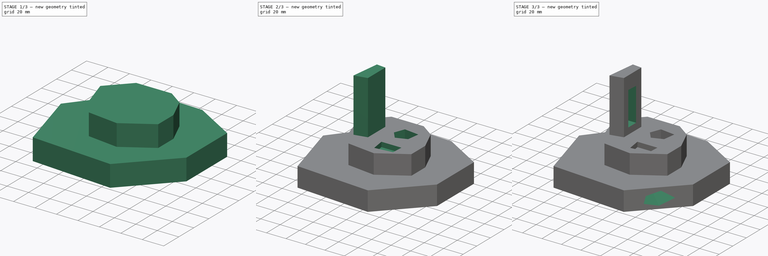
[diagram: build sequence overview — one tinted view per stage of 3, left to right]
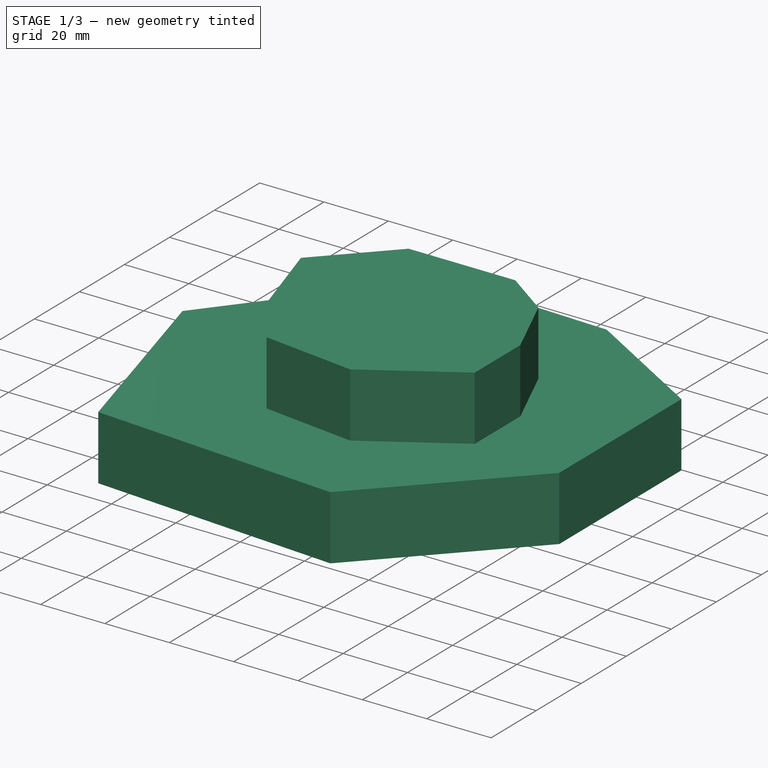
[diagram: stage 1 of 3 — iso view after this stage's code; geometry added in this stage tinted green]
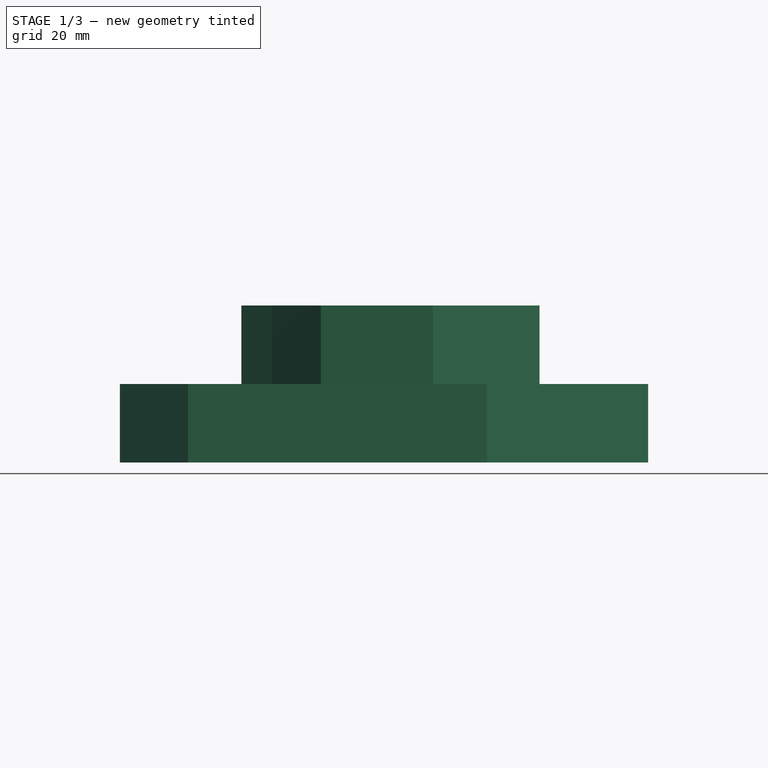
[diagram: stage 1 of 3 — front view after this stage's code; geometry added in this stage tinted green]
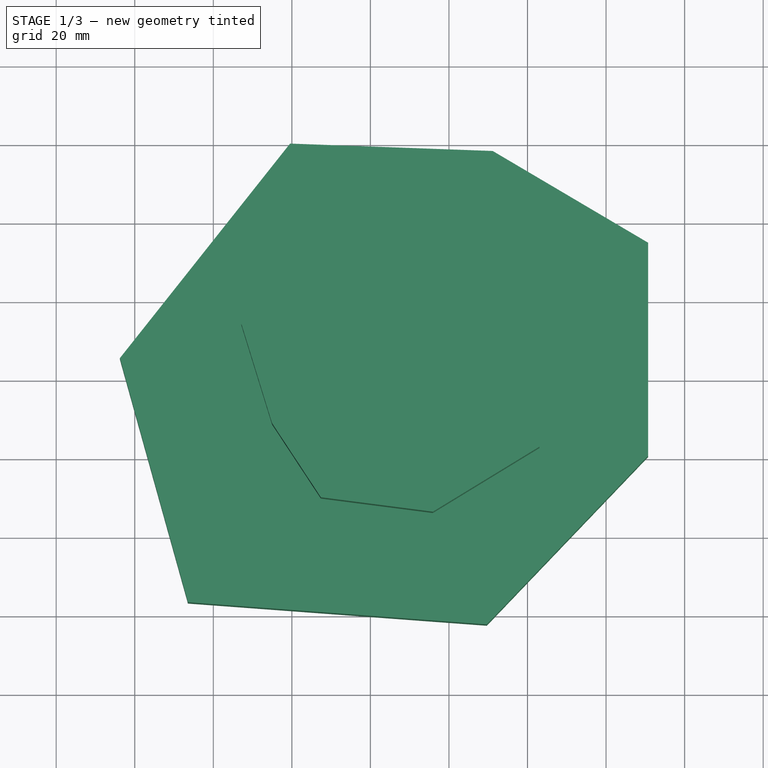
[diagram: stage 1 of 3 — top view after this stage's code; geometry added in this stage tinted green]
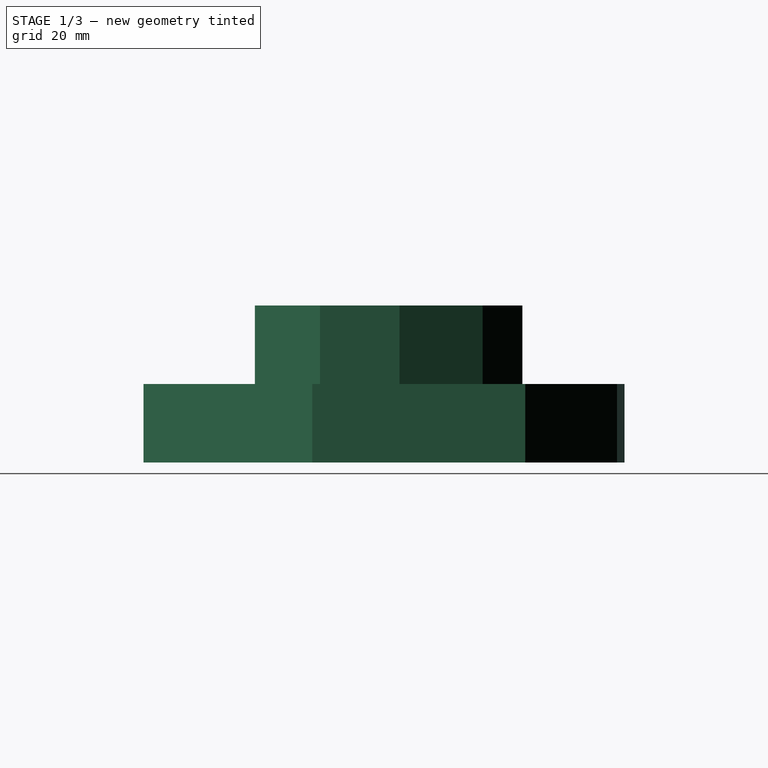
[diagram: stage 1 of 3 — right view after this stage's code; geometry added in this stage tinted green]
FCSTD DOCUMENT  (FreeCAD 0.21R33694 (Git))
Label: OJT1_T17P01_
License: All rights reserved
LicenseURL: http://en.wikipedia.org/wiki/All_rights_reserved
objects: Sketcher::SketchObject×7, PartDesign::Pocket×4, PartDesign::Pad×3, PartDesign::Body×1
note: 22 computed .brp shape members not serialized (recipe doc carries the construction recipe); baked Part::Feature solids carry a one-line shape summary decoded from their .brp

FEATURE [Sketcher::SketchObject] Sketch
  FullyConstrained = false
  MapMode = 5
  Support = -> [XY_Plane]
  sketch-geometry (7):
    g0: LineSegment StartX=-20.4595 StartY=40.1171 StartZ=0 EndX=31.1516 EndY=38.2335 EndZ=0
    g1: LineSegment StartX=31.1516 StartY=38.2335 StartZ=0 EndX=70.7076 EndY=14.8767 EndZ=0
    g2: LineSegment StartX=70.7076 StartY=14.8767 StartZ=0 EndX=70.7076 EndY=-39.3715 EndZ=0
    g3: LineSegment StartX=70.7076 StartY=-39.3715 StartZ=0 EndX=29.6447 EndY=-82.318 EndZ=0
    g4: LineSegment StartX=29.6447 StartY=-82.318 StartZ=0 EndX=-46.4534 EndY=-76.6671 EndZ=0
    g5: LineSegment StartX=-46.4534 StartY=-76.6671 StartZ=0 EndX=-63.7827 EndY=-14.5078 EndZ=0
    g6: LineSegment StartX=-63.7827 StartY=-14.5078 StartZ=0 EndX=-20.4595 EndY=40.1171 EndZ=0
  constraints (8):
    c: Coincident(g0,g1)
    c: Coincident(g1,g2)
    c: Vertical(g2)
    c: Coincident(g2,g3)
    c: Coincident(g3,g4)
    c: Coincident(g4,g5)
    c: Coincident(g5,g6)
    c: Coincident(g6,g0)
FEATURE [PartDesign::Pad] Pad
  Direction = (0,0,1)
  Length = 20
  Length2 = 10
  Profile = -> Sketch
  ReferenceAxis = -> Sketch [N_Axis]
  Type = 0
FEATURE [Sketcher::SketchObject] Sketch001
  FullyConstrained = false
  MapMode = 5
  Placement = pos=(0,0,20) rot=(0,0,1;0rad)
  Support = -> [Pad]
  sketch-geometry (9):
    g0: LineSegment StartX=-13.538 StartY=14.1371 StartZ=0 EndX=19.5914 EndY=14.1371 EndZ=0
    g1: LineSegment StartX=19.5914 StartY=14.1371 StartZ=0 EndX=33.8555 EndY=4.01425 EndZ=0
    g2: LineSegment StartX=33.8555 StartY=4.01425 StartZ=0 EndX=43.0581 EndY=-17.1518 EndZ=0
    g3: LineSegment StartX=43.0581 StartY=-17.1518 StartZ=0 EndX=43.0581 EndY=-37.3975 EndZ=0
    g4: LineSegment StartX=43.0581 StartY=-37.3975 StartZ=0 EndX=15.9104 EndY=-53.9622 EndZ=0
    g5: LineSegment StartX=15.9104 StartY=-53.9622 StartZ=0 EndX=-12.6177 EndY=-50.2812 EndZ=0
    g6: LineSegment StartX=-12.6177 StartY=-50.2812 StartZ=0 EndX=-25.0413 EndY=-31.4158 EndZ=0
    g7: LineSegment StartX=-25.0413 StartY=-31.4158 StartZ=0 EndX=-32.8635 EndY=-6.10863 EndZ=0
    g8: LineSegment StartX=-32.8635 StartY=-6.10863 StartZ=0 EndX=-13.538 EndY=14.1371 EndZ=0
  constraints (11):
    c: Horizontal(g0)
    c: Coincident(g0,g1)
    c: Coincident(g1,g2)
    c: Coincident(g2,g3)
    c: Vertical(g3)
    c: Coincident(g3,g4)
    c: Coincident(g4,g5)
    c: Coincident(g5,g6)
    c: Coincident(g6,g7)
    c: Coincident(g7,g8)
    c: Coincident(g8,g0)
FEATURE [PartDesign::Pad] Pad001
  BaseFeature = -> Pad
  Direction = (0,0,1)
  Length = 20
  Length2 = 10
  Profile = -> Sketch001
  ReferenceAxis = -> Sketch001 [N_Axis]
  Type = 0
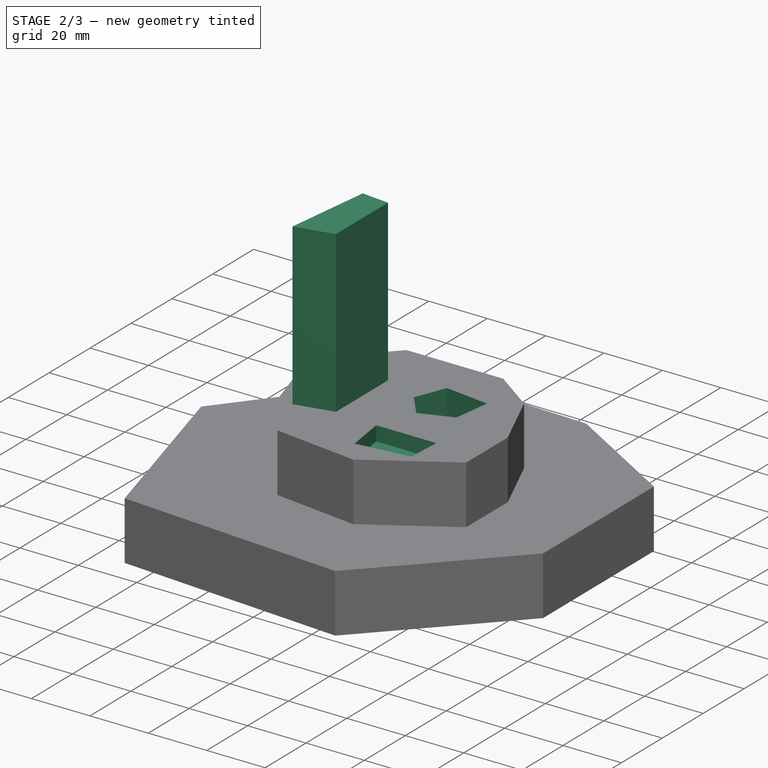
[diagram: stage 2 of 3 — iso view after this stage's code; geometry added in this stage tinted green]
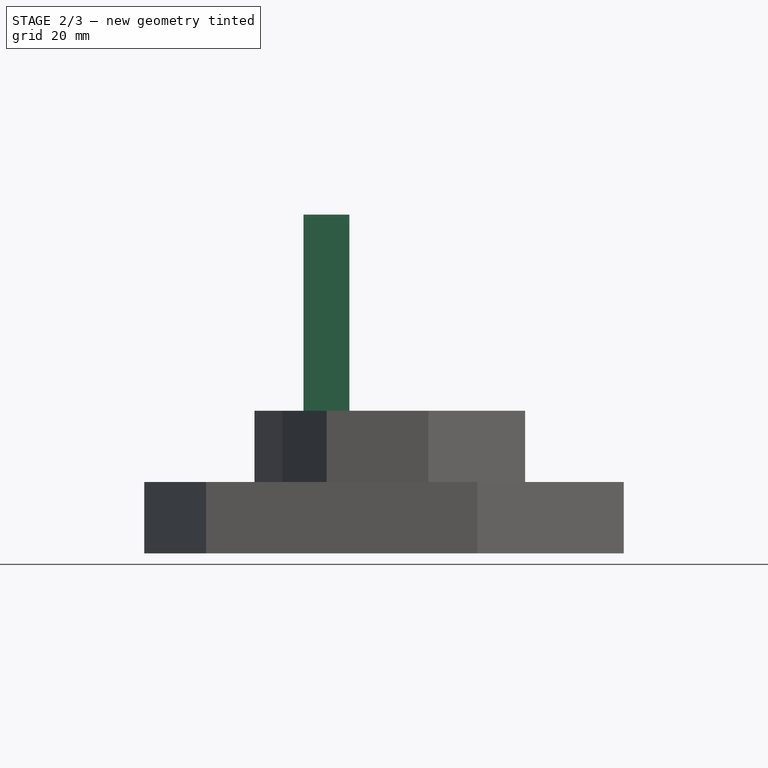
[diagram: stage 2 of 3 — front view after this stage's code; geometry added in this stage tinted green]
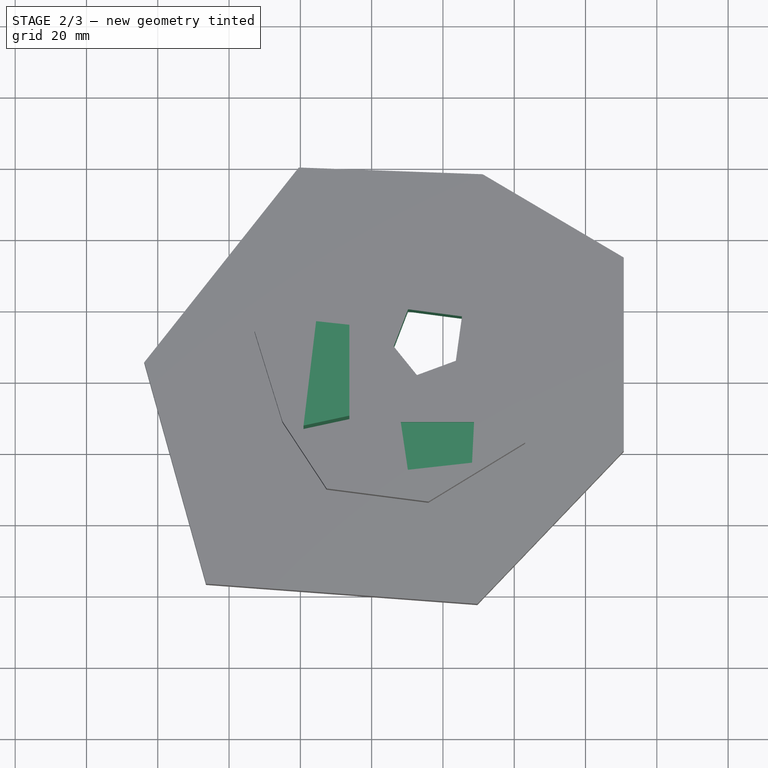
[diagram: stage 2 of 3 — top view after this stage's code; geometry added in this stage tinted green]
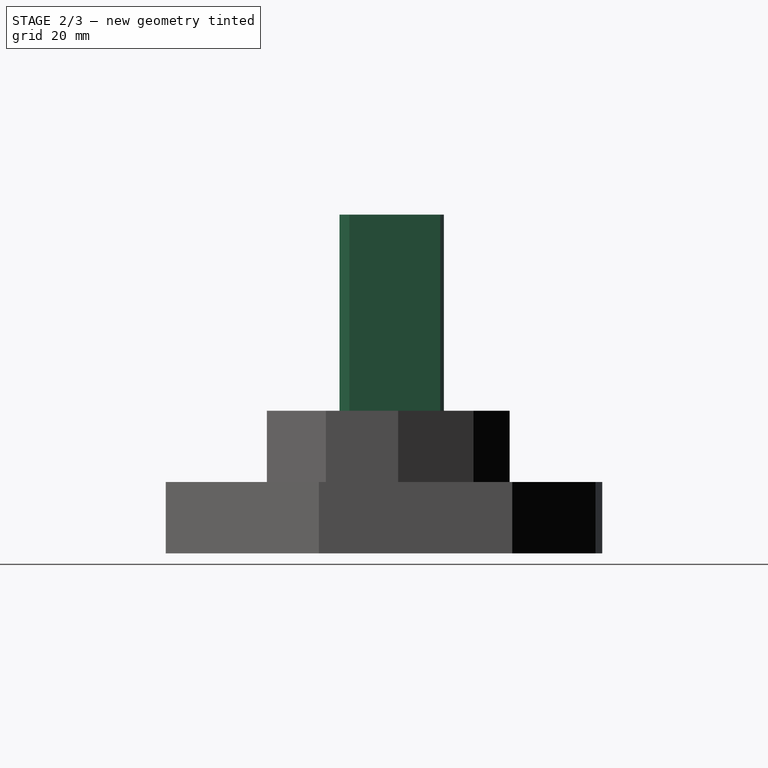
[diagram: stage 2 of 3 — right view after this stage's code; geometry added in this stage tinted green]
FEATURE [Sketcher::SketchObject] Sketch002
  FullyConstrained = false
  MapMode = 5
  Placement = pos=(0,0,40) rot=(0,0,1;0rad)
  Support = -> [Pad001]
  sketch-geometry (4):
    g0: LineSegment StartX=-15.5792 StartY=-4.2961 StartZ=0 EndX=-6.23577 EndY=-5.3062 EndZ=0
    g1: LineSegment StartX=-6.23577 StartY=-5.3062 StartZ=0 EndX=-6.23577 EndY=-30.8113 EndZ=0
    g2: LineSegment StartX=-6.23577 StartY=-30.8113 StartZ=0 EndX=-19.1146 EndY=-33.589 EndZ=0
    g3: LineSegment StartX=-19.1146 StartY=-33.589 StartZ=0 EndX=-15.5792 EndY=-4.2961 EndZ=0
  constraints (5):
    c: Coincident(g0,g1)
    c: Vertical(g1)
    c: Coincident(g1,g2)
    c: Coincident(g2,g3)
    c: Coincident(g3,g0)
FEATURE [PartDesign::Pad] Pad002
  BaseFeature = -> Pad001
  Direction = (0,0,1)
  Length = 55
  Length2 = 10
  Profile = -> Sketch002
  ReferenceAxis = -> Sketch002 [N_Axis]
  Type = 0
FEATURE [Sketcher::SketchObject] Sketch003
  FullyConstrained = false
  MapMode = 5
  Placement = pos=(0,0,40) rot=(0,0,1;0rad)
  Support = -> [Pad002]
  sketch-geometry (4):
    g0: LineSegment StartX=8.15569 StartY=-31.6145 StartZ=0 EndX=28.7288 EndY=-31.6145 EndZ=0
    g1: LineSegment StartX=28.7288 StartY=-31.6145 StartZ=0 EndX=28.1573 EndY=-43.044 EndZ=0
    g2: LineSegment StartX=28.1573 StartY=-43.044 StartZ=0 EndX=10.1558 EndY=-45.0442 EndZ=0
    g3: LineSegment StartX=10.1558 StartY=-45.0442 StartZ=0 EndX=8.15569 EndY=-31.6145 EndZ=0
  constraints (5):
    c: Horizontal(g0)
    c: Coincident(g0,g1)
    c: Coincident(g1,g2)
    c: Coincident(g2,g3)
    c: Coincident(g3,g0)
FEATURE [PartDesign::Pocket] Pocket
  BaseFeature = -> Pad002
  Direction = (0,0,-1)
  Length = 5
  Length2 = 5
  Profile = -> Sketch003
  ReferenceAxis = -> Sketch003 [N_Axis]
  Type = 0
FEATURE [Sketcher::SketchObject] Sketch004
  FullyConstrained = false
  MapMode = 5
  Placement = pos=(0,0,40) rot=(0,0,1;0rad)
  Support = -> [Pocket]
  sketch-geometry (5):
    g0: LineSegment StartX=10.2069 StartY=0 StartZ=0 EndX=25.3382 EndY=-1.99588 EndZ=0
    g1: LineSegment StartX=25.3382 StartY=-1.99588 StartZ=0 EndX=23.6143 EndY=-14.4457 EndZ=0
    g2: LineSegment StartX=23.6143 StartY=-14.4457 StartZ=0 EndX=12.6968 EndY=-18.4679 EndZ=0
    g3: LineSegment StartX=12.6968 StartY=-18.4679 StartZ=0 EndX=6.18462 EndY=-10.4234 EndZ=0
    g4: LineSegment StartX=6.18462 StartY=-10.4234 StartZ=0 EndX=10.2069 EndY=0 EndZ=0
  constraints (6):
    c: PointOnObject(g0,g-1)
    c: Coincident(g0,g1)
    c: Coincident(g1,g2)
    c: Coincident(g2,g3)
    c: Coincident(g3,g4)
    c: Coincident(g4,g0)
FEATURE [PartDesign::Pocket] Pocket001
  BaseFeature = -> Pocket
  Direction = (0,0,-1)
  Length = 5
  Length2 = 5
  Profile = -> Sketch004
  ReferenceAxis = -> Sketch004 [N_Axis]
  Type = 1
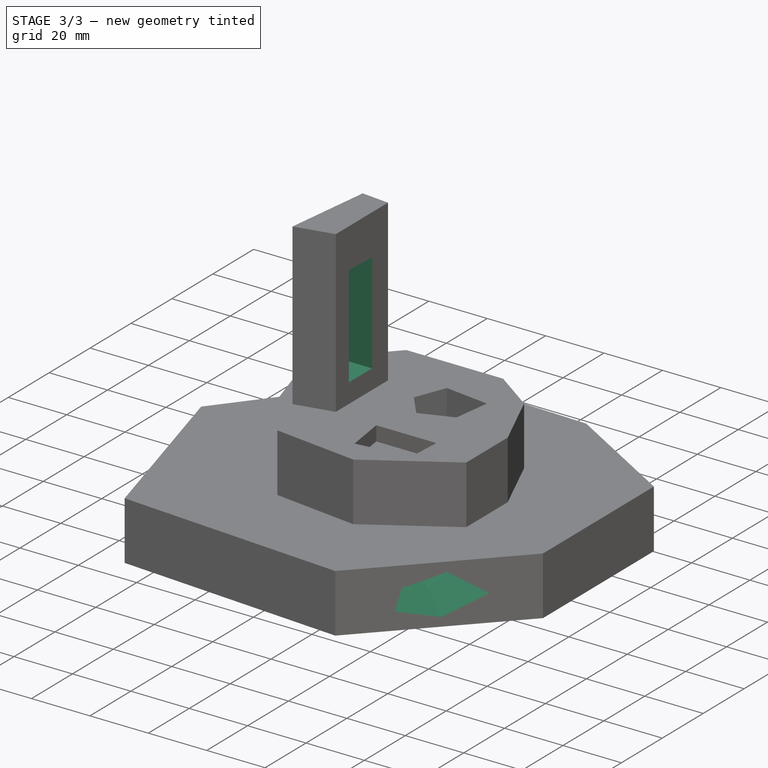
[diagram: stage 3 of 3 — iso view after this stage's code; geometry added in this stage tinted green]
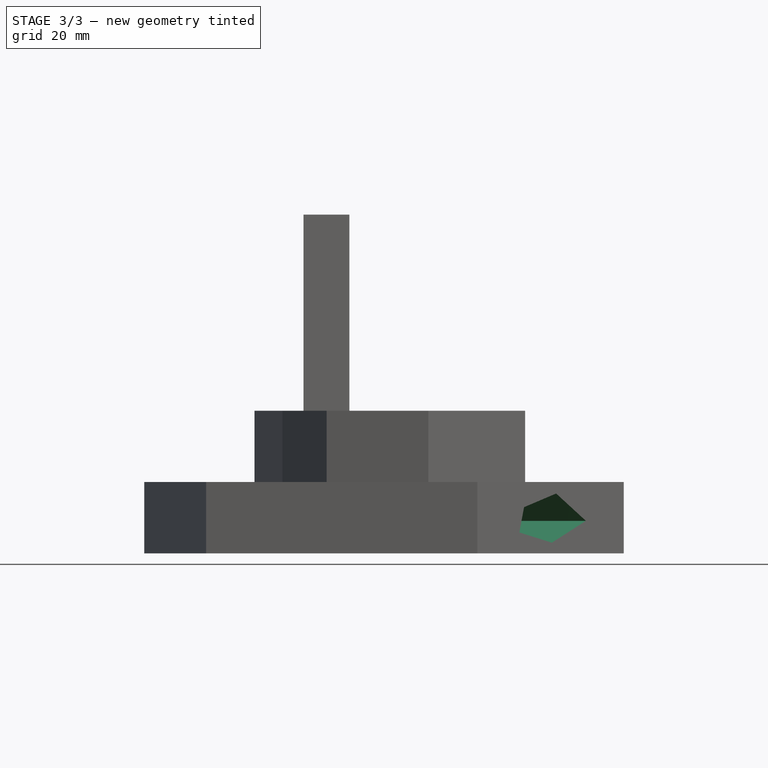
[diagram: stage 3 of 3 — front view after this stage's code; geometry added in this stage tinted green]
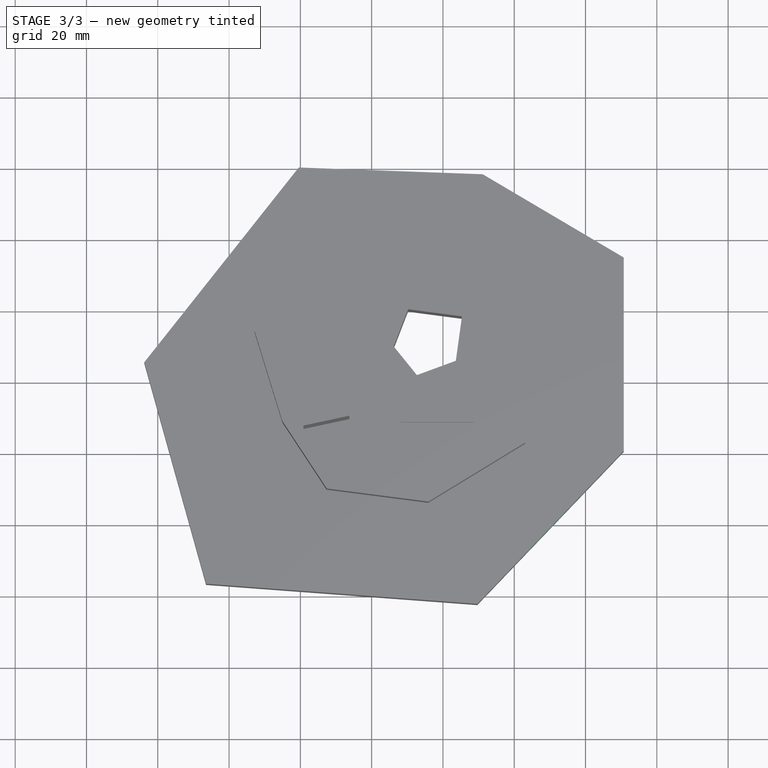
[diagram: stage 3 of 3 — top view after this stage's code; geometry added in this stage tinted green]
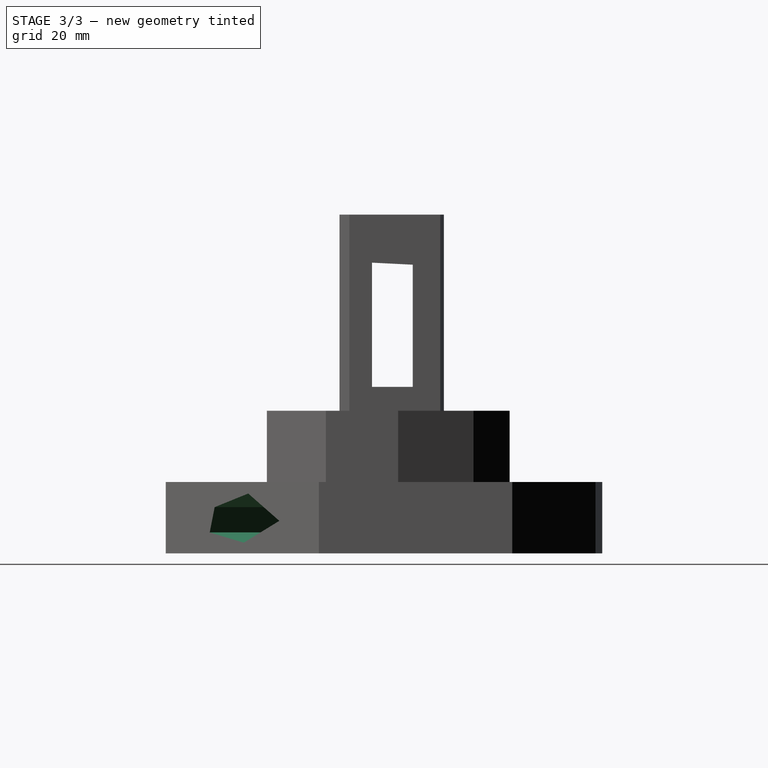
[diagram: stage 3 of 3 — right view after this stage's code; geometry added in this stage tinted green]
FEATURE [Sketcher::SketchObject] Sketch005
  FullyConstrained = false
  MapMode = 5
  Placement = pos=(-6.23577,0,0) rot=(0.57735,0.57735,0.57735;2.0944rad)
  Support = -> [Pocket001]
  sketch-geometry (4):
    g0: LineSegment StartX=-24.4529 StartY=81.5388 StartZ=0 EndX=-13.0234 EndY=80.9673 EndZ=0
    g1: LineSegment StartX=-13.0234 StartY=80.9673 StartZ=0 EndX=-13.0234 EndY=46.6788 EndZ=0
    g2: LineSegment StartX=-13.0234 StartY=46.6788 StartZ=0 EndX=-24.4529 EndY=46.6788 EndZ=0
    g3: LineSegment StartX=-24.4529 StartY=46.6788 StartZ=0 EndX=-24.4529 EndY=81.5388 EndZ=0
  constraints (7):
    c: Coincident(g0,g1)
    c: Vertical(g1)
    c: Coincident(g1,g2)
    c: Horizontal(g2)
    c: Coincident(g2,g3)
    c: Coincident(g3,g0)
    c: Vertical(g3)
FEATURE [PartDesign::Pocket] Pocket002
  BaseFeature = -> Pocket001
  Direction = (-1,0,0)
  Length = 5
  Length2 = 5
  Profile = -> Sketch005
  ReferenceAxis = -> Sketch005 [N_Axis]
  Type = 1
FEATURE [Sketcher::SketchObject] Sketch006
  FullyConstrained = false
  MapMode = 5
  Placement = pos=(56.6043,-54.1217,0) rot=(0.85581,0.36578,0.36578;1.72588rad)
  Support = -> [Pocket002]
  sketch-geometry (5):
    g0: LineSegment StartX=-20.0402 StartY=12.9466 StartZ=0 EndX=-7.01583 EndY=16.7773 EndZ=0
    g1: LineSegment StartX=-7.01583 StartY=16.7773 StartZ=0 EndX=5.05091 EndY=9.11593 EndZ=0
    g2: LineSegment StartX=5.05091 StartY=9.11593 StartZ=0 EndX=-8.73964 EndY=2.98679 EndZ=0
    g3: LineSegment StartX=-8.73964 StartY=2.98679 StartZ=0 EndX=-21.9556 EndY=5.85982 EndZ=0
    g4: LineSegment StartX=-21.9556 StartY=5.85982 StartZ=0 EndX=-20.0402 EndY=12.9466 EndZ=0
  constraints (5):
    c: Coincident(g0,g1)
    c: Coincident(g1,g2)
    c: Coincident(g2,g3)
    c: Coincident(g3,g4)
    c: Coincident(g4,g0)
FEATURE [PartDesign::Pocket] Pocket003
  BaseFeature = -> Pocket002
  Direction = (-0.72278,0.691079,0)
  Length = 5
  Length2 = 5
  Profile = -> Sketch006
  ReferenceAxis = -> Sketch006 [N_Axis]
  Type = 1
FEATURE [PartDesign::Body] Body
  Group = -> [Sketch,Pad,Sketch001,Pad001,Sketch002,Pad002,Sketch003,Pocket,Sketch004,Pocket001,Sketch005,Pocket002,Sketch006,Pocket003]
  Origin = -> Origin
  Tip = -> Pocket003
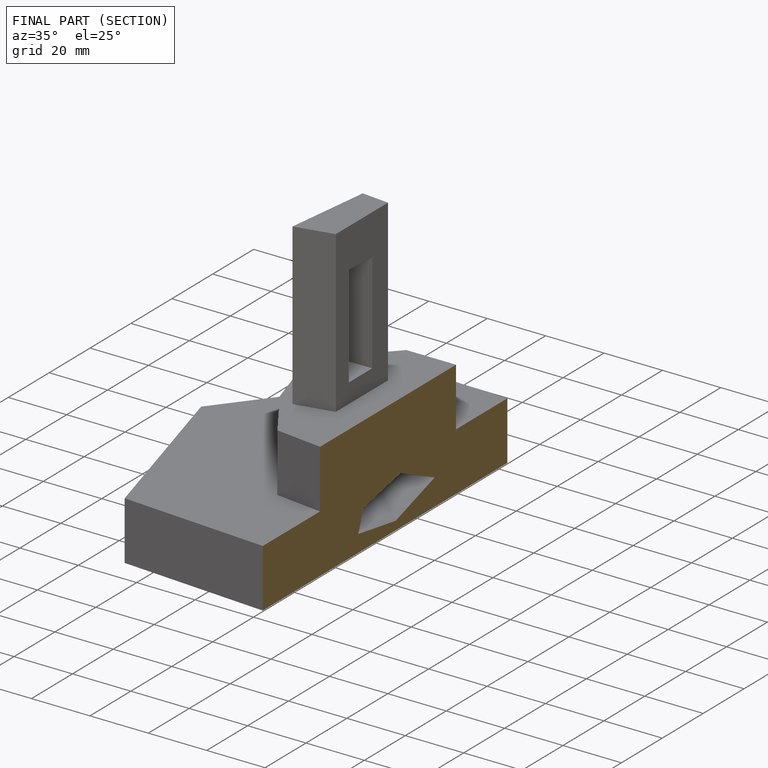
[diagram: finished part — half-section view (interior)]
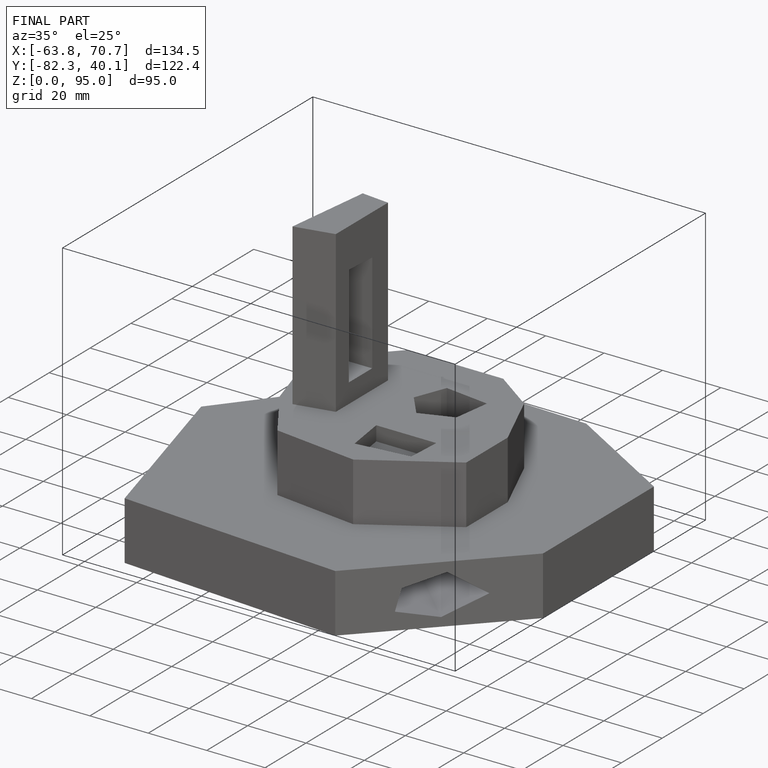
[diagram: finished part — iso view with bounding-box wireframe]
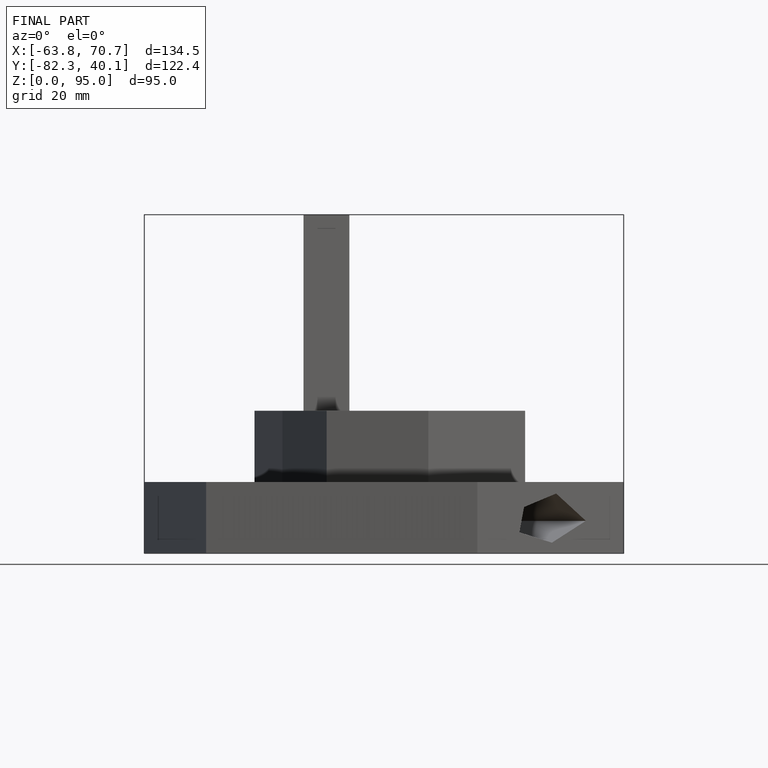
[diagram: finished part — front view with bounding-box wireframe]
